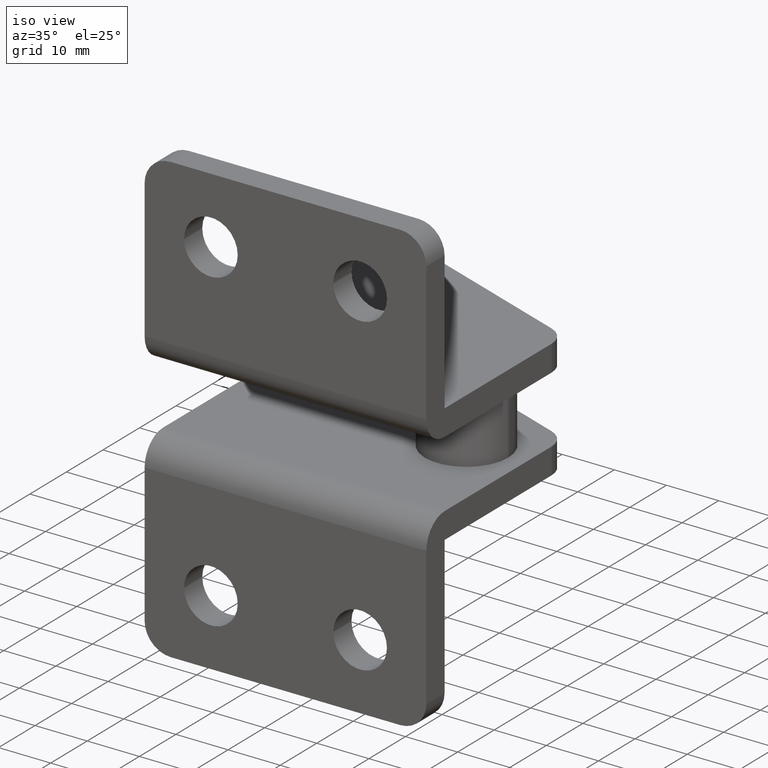
[diagram: clean part render]
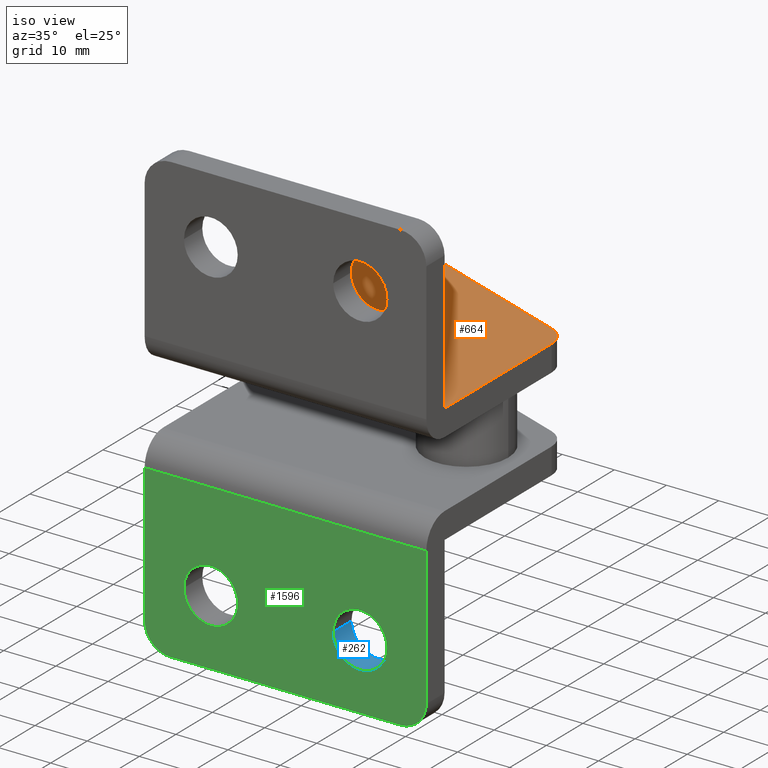
[diagram: same view with three faces highlighted in distinct colors, each labeled with its STEP entity id]
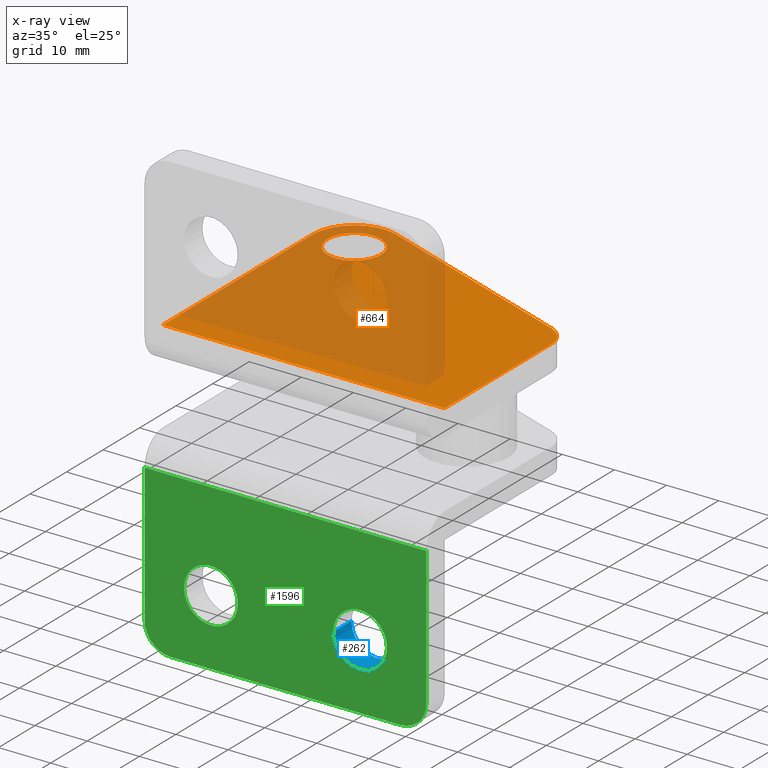
[diagram: x-ray of the same camera — body ghosted, the three highlighted faces saturated]
A machine part, iso view with three faces highlighted in distinct colors.
The next image is the same camera in x-ray (body ghosted, the three faces saturated) — at least one of them is partly hidden behind the body in this view.
Their STEP definitions:

[orange] entity #664 — the highlighted planar face has unit normal (0, 0, -1).
#31 = CARTESIAN_POINT ( 'NONE',  ( 0.0000000000000000000, 53.99999999999987900, 4.999999999999948500 ) ) ;
#54 = VERTEX_POINT ( 'NONE', #279 ) ;
#77 = AXIS2_PLACEMENT_3D ( 'NONE', #445, #1728, #180 ) ;
#79 = EDGE_CURVE ( 'NONE', #1765, #777, #438, .T. ) ;
#107 = CARTESIAN_POINT ( 'NONE',  ( 54.00000000000000000, 53.99999999999987900, 4.999999999999948500 ) ) ;
#111 = DIRECTION ( 'NONE',  ( -1.000000000000000000, 0.0000000000000000000, 0.0000000000000000000 ) ) ;
#116 = CIRCLE ( 'NONE', #1435, 8.000000000000003600 ) ;
#120 = CARTESIAN_POINT ( 'NONE',  ( 7.999999999999992900, 51.12249938994616400, 4.999999999999948500 ) ) ;
#155 = CARTESIAN_POINT ( 'NONE',  ( 30.72309770107623800, 46.24301412993372700, 4.999999999999948500 ) ) ;
#180 = DIRECTION ( 'NONE',  ( -1.000000000000000000, 0.0000000000000000000, 0.0000000000000000000 ) ) ;
#279 = CARTESIAN_POINT ( 'NONE',  ( 54.00000000000024200, 34.27000000000000300, 4.999999999999948500 ) ) ;
#292 = VERTEX_POINT ( 'NONE', #1401 ) ;
#310 = CARTESIAN_POINT ( 'NONE',  ( 50.71007515467414400, 38.96847240764139300, 4.999999999999948500 ) ) ;
#325 = CARTESIAN_POINT ( 'NONE',  ( 54.00000000000000000, 4.999999999999948500, 4.999999999999948500 ) ) ;
#334 = AXIS2_PLACEMENT_3D ( 'NONE', #1854, #1026, #111 ) ;
#349 = VECTOR ( 'NONE', #1533, 1000.000000000000000 ) ;
#407 = CARTESIAN_POINT ( 'NONE',  ( 0.0000000000000000000, 4.999999999999948500, 4.999999999999948500 ) ) ;
#438 = LINE ( 'NONE', #325, #349 ) ;
#445 = CARTESIAN_POINT ( 'NONE',  ( 7.999999999999992900, 45.99999999999987900, 4.999999999999948500 ) ) ;
#455 = CIRCLE ( 'NONE', #334, 5.122499389946279200 ) ;
#536 = VERTEX_POINT ( 'NONE', #1813 ) ;
#541 = LINE ( 'NONE', #31, #1868 ) ;
#543 = ORIENTED_EDGE ( 'NONE', *, *, #79, .F. ) ;
#557 = DIRECTION ( 'NONE',  ( 0.0000000000000000000, 0.0000000000000000000, 1.000000000000000000 ) ) ;
#562 = FACE_OUTER_BOUND ( 'NONE', #1633, .T. ) ;
#574 = ORIENTED_EDGE ( 'NONE', *, *, #588, .F. ) ;
#582 = EDGE_CURVE ( 'NONE', #536, #777, #541, .T. ) ;
#588 = EDGE_CURVE ( 'NONE', #54, #1765, #766, .T. ) ;
#613 = EDGE_CURVE ( 'NONE', #54, #1004, #1309, .T. ) ;
#625 = EDGE_CURVE ( 'NONE', #292, #536, #116, .T. ) ;
#647 = DIRECTION ( 'NONE',  ( 0.0000000000000000000, -1.000000000000000000, 0.0000000000000000000 ) ) ;
#664 = ADVANCED_FACE ( 'NONE', ( #907, #562 ), #1343, .F. ) ;
#676 = DIRECTION ( 'NONE',  ( 1.000000000000000000, 0.0000000000000000000, 0.0000000000000000000 ) ) ;
#704 = VERTEX_POINT ( 'NONE', #120 ) ;
#766 = LINE ( 'NONE', #1611, #846 ) ;
#777 = VERTEX_POINT ( 'NONE', #407 ) ;
#792 = DIRECTION ( 'NONE',  ( 1.000000000000000000, 0.0000000000000000000, 0.0000000000000000000 ) ) ;
#813 = ORIENTED_EDGE ( 'NONE', *, *, #613, .T. ) ;
#817 = CIRCLE ( 'NONE', #77, 5.122499389946279200 ) ;
#829 = CARTESIAN_POINT ( 'NONE',  ( 7.999999999999992900, 40.87750061005360200, 4.999999999999948500 ) ) ;
#830 = DIRECTION ( 'NONE',  ( 0.0000000000000000000, 0.0000000000000000000, -1.000000000000000000 ) ) ;
#846 = VECTOR ( 'NONE', #1428, 1000.000000000000000 ) ;
#902 = DIRECTION ( 'NONE',  ( -0.9396944815282642900, 0.3420150309347916300, 0.0000000000000000000 ) ) ;
#907 = FACE_BOUND ( 'NONE', #1820, .T. ) ;
#925 = ORIENTED_EDGE ( 'NONE', *, *, #1468, .T. ) ;
#943 = AXIS2_PLACEMENT_3D ( 'NONE', #107, #830, #1711 ) ;
#957 = ORIENTED_EDGE ( 'NONE', *, *, #1155, .T. ) ;
#985 = EDGE_CURVE ( 'NONE', #1067, #704, #817, .T. ) ;
#1004 = VERTEX_POINT ( 'NONE', #310 ) ;
#1026 = DIRECTION ( 'NONE',  ( 0.0000000000000000000, 0.0000000000000000000, -1.000000000000000000 ) ) ;
#1067 = VERTEX_POINT ( 'NONE', #829 ) ;
#1155 = EDGE_CURVE ( 'NONE', #1004, #292, #1221, .T. ) ;
#1221 = LINE ( 'NONE', #155, #1575 ) ;
#1255 = ORIENTED_EDGE ( 'NONE', *, *, #582, .T. ) ;
#1309 = CIRCLE ( 'NONE', #1497, 5.000000000000073700 ) ;
#1343 = PLANE ( 'NONE',  #943 ) ;
#1401 = CARTESIAN_POINT ( 'NONE',  ( 10.73612024747827200, 53.51755585222601800, 4.999999999999948500 ) ) ;
#1428 = DIRECTION ( 'NONE',  ( 0.0000000000000000000, -1.000000000000000000, 0.0000000000000000000 ) ) ;
#1435 = AXIS2_PLACEMENT_3D ( 'NONE', #1572, #1834, #676 ) ;
#1440 = CARTESIAN_POINT ( 'NONE',  ( 49.00000000000017100, 34.27000000000000300, 4.999999999999948500 ) ) ;
#1468 = EDGE_CURVE ( 'NONE', #704, #1067, #455, .T. ) ;
#1478 = ORIENTED_EDGE ( 'NONE', *, *, #625, .T. ) ;
#1497 = AXIS2_PLACEMENT_3D ( 'NONE', #1440, #557, #792 ) ;
#1533 = DIRECTION ( 'NONE',  ( -1.000000000000000000, -0.0000000000000000000, 0.0000000000000000000 ) ) ;
#1541 = ORIENTED_EDGE ( 'NONE', *, *, #985, .T. ) ;
#1572 = CARTESIAN_POINT ( 'NONE',  ( 7.999999999999992900, 45.99999999999987900, 4.999999999999948500 ) ) ;
#1575 = VECTOR ( 'NONE', #902, 1000.000000000000100 ) ;
#1611 = CARTESIAN_POINT ( 'NONE',  ( 54.00000000000000000, 53.99999999999987900, 4.999999999999948500 ) ) ;
#1633 = EDGE_LOOP ( 'NONE', ( #1478, #1255, #543, #574, #813, #957 ) ) ;
#1711 = DIRECTION ( 'NONE',  ( -1.000000000000000000, 0.0000000000000000000, 0.0000000000000000000 ) ) ;
#1728 = DIRECTION ( 'NONE',  ( 0.0000000000000000000, 0.0000000000000000000, -1.000000000000000000 ) ) ;
#1765 = VERTEX_POINT ( 'NONE', #1884 ) ;
#1813 = CARTESIAN_POINT ( 'NONE',  ( 0.0000000000000000000, 45.99999999999987900, 4.999999999999948500 ) ) ;
#1820 = EDGE_LOOP ( 'NONE', ( #925, #1541 ) ) ;
#1834 = DIRECTION ( 'NONE',  ( 0.0000000000000000000, 0.0000000000000000000, 1.000000000000000000 ) ) ;
#1854 = CARTESIAN_POINT ( 'NONE',  ( 7.999999999999992900, 45.99999999999987900, 4.999999999999948500 ) ) ;
#1868 = VECTOR ( 'NONE', #647, 1000.000000000000000 ) ;
#1884 = CARTESIAN_POINT ( 'NONE',  ( 54.00000000000000000, 4.999999999999948500, 4.999999999999948500 ) ) ;

[blue] entity #262 — the highlighted cylindrical surface (edge-blend (fillet) strip) has radius 5.15 mm, axis along (0, 1, 0).
#19 = CIRCLE ( 'NONE', #141, 5.150000000000002100 ) ;
#113 = AXIS2_PLACEMENT_3D ( 'NONE', #441, #1054, #610 ) ;
#132 = ORIENTED_EDGE ( 'NONE', *, *, #1090, .F. ) ;
#141 = AXIS2_PLACEMENT_3D ( 'NONE', #248, #1510, #938 ) ;
#157 = EDGE_LOOP ( 'NONE', ( #484, #677, #999, #132 ) ) ;
#245 = CARTESIAN_POINT ( 'NONE',  ( 41.30000000000036700, -5.854691731421723900E-014, -36.60000000000025000 ) ) ;
#248 = CARTESIAN_POINT ( 'NONE',  ( 41.30000000000036700, 4.999999999999945800, -36.60000000000025000 ) ) ;
#262 = ADVANCED_FACE ( 'NONE', ( #477 ), #1753, .F. ) ;
#357 = AXIS2_PLACEMENT_3D ( 'NONE', #245, #404, #1471 ) ;
#404 = DIRECTION ( 'NONE',  ( 0.0000000000000000000, -1.000000000000000000, -0.0000000000000000000 ) ) ;
#416 = CARTESIAN_POINT ( 'NONE',  ( 36.15000000000036100, -5.854691731421723900E-014, -36.60000000000025000 ) ) ;
#441 = CARTESIAN_POINT ( 'NONE',  ( 41.30000000000036700, -49.00000000000005000, -36.60000000000025000 ) ) ;
#474 = VERTEX_POINT ( 'NONE', #1219 ) ;
#477 = FACE_OUTER_BOUND ( 'NONE', #157, .T. ) ;
#484 = ORIENTED_EDGE ( 'NONE', *, *, #1523, .F. ) ;
#584 = CIRCLE ( 'NONE', #357, 5.150000000000002100 ) ;
#610 = DIRECTION ( 'NONE',  ( 1.000000000000000000, 0.0000000000000000000, 0.0000000000000000000 ) ) ;
#677 = ORIENTED_EDGE ( 'NONE', *, *, #1382, .T. ) ;
#744 = LINE ( 'NONE', #1507, #1850 ) ;
#805 = CARTESIAN_POINT ( 'NONE',  ( 46.45000000000036500, -49.00000000000005000, -36.60000000000025000 ) ) ;
#826 = VERTEX_POINT ( 'NONE', #1848 ) ;
#938 = DIRECTION ( 'NONE',  ( 1.000000000000000000, 0.0000000000000000000, 0.0000000000000000000 ) ) ;
#961 = DIRECTION ( 'NONE',  ( 0.0000000000000000000, 1.000000000000000000, 0.0000000000000000000 ) ) ;
#999 = ORIENTED_EDGE ( 'NONE', *, *, #1274, .T. ) ;
#1013 = LINE ( 'NONE', #805, #1482 ) ;
#1054 = DIRECTION ( 'NONE',  ( 0.0000000000000000000, 1.000000000000000000, 0.0000000000000000000 ) ) ;
#1075 = CARTESIAN_POINT ( 'NONE',  ( 46.45000000000036500, -5.854691731421723900E-014, -36.60000000000025000 ) ) ;
#1090 = EDGE_CURVE ( 'NONE', #826, #474, #19, .T. ) ;
#1199 = VERTEX_POINT ( 'NONE', #1075 ) ;
#1219 = CARTESIAN_POINT ( 'NONE',  ( 46.45000000000036500, 4.999999999999945800, -36.60000000000025000 ) ) ;
#1274 = EDGE_CURVE ( 'NONE', #1199, #474, #1013, .T. ) ;
#1382 = EDGE_CURVE ( 'NONE', #1464, #1199, #584, .T. ) ;
#1464 = VERTEX_POINT ( 'NONE', #416 ) ;
#1471 = DIRECTION ( 'NONE',  ( 1.000000000000000000, 0.0000000000000000000, 0.0000000000000000000 ) ) ;
#1482 = VECTOR ( 'NONE', #961, 1000.000000000000000 ) ;
#1507 = CARTESIAN_POINT ( 'NONE',  ( 36.15000000000036100, -49.00000000000005000, -36.60000000000025000 ) ) ;
#1510 = DIRECTION ( 'NONE',  ( 0.0000000000000000000, -1.000000000000000000, -0.0000000000000000000 ) ) ;
#1523 = EDGE_CURVE ( 'NONE', #1464, #826, #744, .T. ) ;
#1753 = CYLINDRICAL_SURFACE ( 'NONE', #113, 5.150000000000002100 ) ;
#1848 = CARTESIAN_POINT ( 'NONE',  ( 36.15000000000036100, 4.999999999999945800, -36.60000000000025000 ) ) ;
#1850 = VECTOR ( 'NONE', #1865, 1000.000000000000000 ) ;
#1865 = DIRECTION ( 'NONE',  ( 0.0000000000000000000, 1.000000000000000000, 0.0000000000000000000 ) ) ;

[green] entity #1596 — the highlighted planar face has unit normal (0, 1, 0).
#30 = VERTEX_POINT ( 'NONE', #1774 ) ;
#35 = ORIENTED_EDGE ( 'NONE', *, *, #875, .F. ) ;
#70 = ORIENTED_EDGE ( 'NONE', *, *, #1382, .F. ) ;
#74 = DIRECTION ( 'NONE',  ( 0.0000000000000000000, -1.000000000000000000, -0.0000000000000000000 ) ) ;
#98 = LINE ( 'NONE', #289, #662 ) ;
#99 = AXIS2_PLACEMENT_3D ( 'NONE', #1228, #1029, #758 ) ;
#119 = AXIS2_PLACEMENT_3D ( 'NONE', #1688, #845, #1729 ) ;
#125 = CARTESIAN_POINT ( 'NONE',  ( 54.00000000000000000, -5.919743861770854200E-014, -49.30000000000002600 ) ) ;
#140 = AXIS2_PLACEMENT_3D ( 'NONE', #1311, #1851, #561 ) ;
#153 = CARTESIAN_POINT ( 'NONE',  ( 4.999999999998876500, -5.854691731421723900E-014, -44.30000000000052300 ) ) ;
#186 = LINE ( 'NONE', #1206, #1186 ) ;
#245 = CARTESIAN_POINT ( 'NONE',  ( 41.30000000000036700, -5.854691731421723900E-014, -36.60000000000025000 ) ) ;
#289 = CARTESIAN_POINT ( 'NONE',  ( 54.00000000000000000, -5.919743861770854200E-014, -17.80000000000000400 ) ) ;
#304 = AXIS2_PLACEMENT_3D ( 'NONE', #125, #876, #1761 ) ;
#346 = DIRECTION ( 'NONE',  ( 0.0000000000000000000, 0.0000000000000000000, 1.000000000000000000 ) ) ;
#357 = AXIS2_PLACEMENT_3D ( 'NONE', #245, #404, #1471 ) ;
#385 = VECTOR ( 'NONE', #1517, 1000.000000000000000 ) ;
#396 = ORIENTED_EDGE ( 'NONE', *, *, #530, .T. ) ;
#404 = DIRECTION ( 'NONE',  ( 0.0000000000000000000, -1.000000000000000000, -0.0000000000000000000 ) ) ;
#416 = CARTESIAN_POINT ( 'NONE',  ( 36.15000000000036100, -5.854691731421723900E-014, -36.60000000000025000 ) ) ;
#420 = FACE_BOUND ( 'NONE', #1808, .T. ) ;
#427 = CIRCLE ( 'NONE', #1437, 5.150000000000002100 ) ;
#454 = CARTESIAN_POINT ( 'NONE',  ( 54.00000000000000000, -5.919743861770854200E-014, -17.80000000000000400 ) ) ;
#479 = ORIENTED_EDGE ( 'NONE', *, *, #1021, .T. ) ;
#493 = CARTESIAN_POINT ( 'NONE',  ( 41.30000000000036700, -5.854691731421723900E-014, -36.60000000000025000 ) ) ;
#511 = CARTESIAN_POINT ( 'NONE',  ( 4.999999999999112700, -5.854691731421723900E-014, -49.29999999999962800 ) ) ;
#527 = EDGE_CURVE ( 'NONE', #890, #1628, #186, .T. ) ;
#530 = EDGE_CURVE ( 'NONE', #1597, #579, #1082, .T. ) ;
#561 = DIRECTION ( 'NONE',  ( 1.000000000000000000, 0.0000000000000000000, 0.0000000000000000000 ) ) ;
#579 = VERTEX_POINT ( 'NONE', #511 ) ;
#584 = CIRCLE ( 'NONE', #357, 5.150000000000002100 ) ;
#598 = FACE_OUTER_BOUND ( 'NONE', #940, .T. ) ;
#609 = EDGE_CURVE ( 'NONE', #1199, #1464, #427, .T. ) ;
#628 = DIRECTION ( 'NONE',  ( 0.0000000000000000000, 0.0000000000000000000, 1.000000000000000000 ) ) ;
#629 = ORIENTED_EDGE ( 'NONE', *, *, #1034, .F. ) ;
#651 = LINE ( 'NONE', #929, #1039 ) ;
#662 = VECTOR ( 'NONE', #1764, 1000.000000000000000 ) ;
#701 = EDGE_CURVE ( 'NONE', #1628, #1131, #98, .T. ) ;
#709 = CARTESIAN_POINT ( 'NONE',  ( 53.99999999999934600, -5.854691731421723900E-014, -44.30000000000016800 ) ) ;
#716 = VERTEX_POINT ( 'NONE', #1863 ) ;
#758 = DIRECTION ( 'NONE',  ( 1.000000000000000000, 0.0000000000000000000, 0.0000000000000000000 ) ) ;
#782 = CARTESIAN_POINT ( 'NONE',  ( 49.00000000000037700, -5.919743861770854200E-014, -49.30000000000002600 ) ) ;
#845 = DIRECTION ( 'NONE',  ( 0.0000000000000000000, -1.000000000000000000, -0.0000000000000000000 ) ) ;
#875 = EDGE_CURVE ( 'NONE', #1201, #579, #1826, .T. ) ;
#876 = DIRECTION ( 'NONE',  ( -0.0000000000000000000, 1.000000000000000000, 0.0000000000000000000 ) ) ;
#890 = VERTEX_POINT ( 'NONE', #709 ) ;
#929 = CARTESIAN_POINT ( 'NONE',  ( 0.0000000000000000000, -5.919743861770854200E-014, -49.30000000000002600 ) ) ;
#940 = EDGE_LOOP ( 'NONE', ( #479, #1885, #1377, #1526, #396, #35 ) ) ;
#980 = FACE_BOUND ( 'NONE', #1805, .T. ) ;
#1010 = CIRCLE ( 'NONE', #119, 5.150000000000002100 ) ;
#1021 = EDGE_CURVE ( 'NONE', #1201, #890, #1841, .T. ) ;
#1029 = DIRECTION ( 'NONE',  ( 0.0000000000000000000, -1.000000000000000000, -0.0000000000000000000 ) ) ;
#1034 = EDGE_CURVE ( 'NONE', #716, #30, #1010, .T. ) ;
#1039 = VECTOR ( 'NONE', #346, 1000.000000000000000 ) ;
#1062 = EDGE_CURVE ( 'NONE', #30, #716, #1642, .T. ) ;
#1075 = CARTESIAN_POINT ( 'NONE',  ( 46.45000000000036500, -5.854691731421723900E-014, -36.60000000000025000 ) ) ;
#1082 = CIRCLE ( 'NONE', #1182, 4.999999999999109200 ) ;
#1131 = VERTEX_POINT ( 'NONE', #1724 ) ;
#1182 = AXIS2_PLACEMENT_3D ( 'NONE', #153, #74, #1352 ) ;
#1186 = VECTOR ( 'NONE', #628, 1000.000000000000000 ) ;
#1199 = VERTEX_POINT ( 'NONE', #1075 ) ;
#1201 = VERTEX_POINT ( 'NONE', #782 ) ;
#1206 = CARTESIAN_POINT ( 'NONE',  ( 54.00000000000000000, -5.919743861770854200E-014, -49.30000000000002600 ) ) ;
#1227 = ORIENTED_EDGE ( 'NONE', *, *, #1062, .F. ) ;
#1228 = CARTESIAN_POINT ( 'NONE',  ( 49.00000000000037700, -5.854691731421723900E-014, -44.30000000000022500 ) ) ;
#1260 = EDGE_CURVE ( 'NONE', #1597, #1131, #651, .T. ) ;
#1311 = CARTESIAN_POINT ( 'NONE',  ( 12.70000000000034900, -5.854691731421723900E-014, -36.60000000000013600 ) ) ;
#1352 = DIRECTION ( 'NONE',  ( 1.000000000000000000, 0.0000000000000000000, 0.0000000000000000000 ) ) ;
#1377 = ORIENTED_EDGE ( 'NONE', *, *, #701, .T. ) ;
#1382 = EDGE_CURVE ( 'NONE', #1464, #1199, #584, .T. ) ;
#1424 = DIRECTION ( 'NONE',  ( 0.0000000000000000000, -1.000000000000000000, -0.0000000000000000000 ) ) ;
#1437 = AXIS2_PLACEMENT_3D ( 'NONE', #493, #1424, #1481 ) ;
#1464 = VERTEX_POINT ( 'NONE', #416 ) ;
#1471 = DIRECTION ( 'NONE',  ( 1.000000000000000000, 0.0000000000000000000, 0.0000000000000000000 ) ) ;
#1481 = DIRECTION ( 'NONE',  ( 1.000000000000000000, 0.0000000000000000000, 0.0000000000000000000 ) ) ;
#1515 = PLANE ( 'NONE',  #304 ) ;
#1517 = DIRECTION ( 'NONE',  ( -1.000000000000000000, 0.0000000000000000000, 0.0000000000000000000 ) ) ;
#1526 = ORIENTED_EDGE ( 'NONE', *, *, #1260, .F. ) ;
#1528 = CARTESIAN_POINT ( 'NONE',  ( 54.00000000000000000, -5.919743861770854200E-014, -49.30000000000002600 ) ) ;
#1596 = ADVANCED_FACE ( 'NONE', ( #420, #980, #598 ), #1515, .F. ) ;
#1597 = VERTEX_POINT ( 'NONE', #1635 ) ;
#1628 = VERTEX_POINT ( 'NONE', #454 ) ;
#1635 = CARTESIAN_POINT ( 'NONE',  ( 0.0000000000000000000, -5.854691731421723900E-014, -44.30000000000052300 ) ) ;
#1642 = CIRCLE ( 'NONE', #140, 5.150000000000002100 ) ;
#1688 = CARTESIAN_POINT ( 'NONE',  ( 12.70000000000034900, -5.854691731421723900E-014, -36.60000000000013600 ) ) ;
#1724 = CARTESIAN_POINT ( 'NONE',  ( 0.0000000000000000000, -5.919743861770854200E-014, -17.80000000000000400 ) ) ;
#1729 = DIRECTION ( 'NONE',  ( 1.000000000000000000, 0.0000000000000000000, 0.0000000000000000000 ) ) ;
#1730 = ORIENTED_EDGE ( 'NONE', *, *, #609, .F. ) ;
#1761 = DIRECTION ( 'NONE',  ( 1.000000000000000000, 0.0000000000000000000, 0.0000000000000000000 ) ) ;
#1764 = DIRECTION ( 'NONE',  ( -1.000000000000000000, 0.0000000000000000000, 0.0000000000000000000 ) ) ;
#1774 = CARTESIAN_POINT ( 'NONE',  ( 17.85000000000035300, -5.854691731421723900E-014, -36.60000000000013600 ) ) ;
#1805 = EDGE_LOOP ( 'NONE', ( #1730, #70 ) ) ;
#1808 = EDGE_LOOP ( 'NONE', ( #1227, #629 ) ) ;
#1826 = LINE ( 'NONE', #1528, #385 ) ;
#1841 = CIRCLE ( 'NONE', #99, 4.999999999999185500 ) ;
#1851 = DIRECTION ( 'NONE',  ( 0.0000000000000000000, -1.000000000000000000, -0.0000000000000000000 ) ) ;
#1863 = CARTESIAN_POINT ( 'NONE',  ( 7.550000000000347100, -5.854691731421723900E-014, -36.60000000000013600 ) ) ;
#1885 = ORIENTED_EDGE ( 'NONE', *, *, #527, .T. ) ;